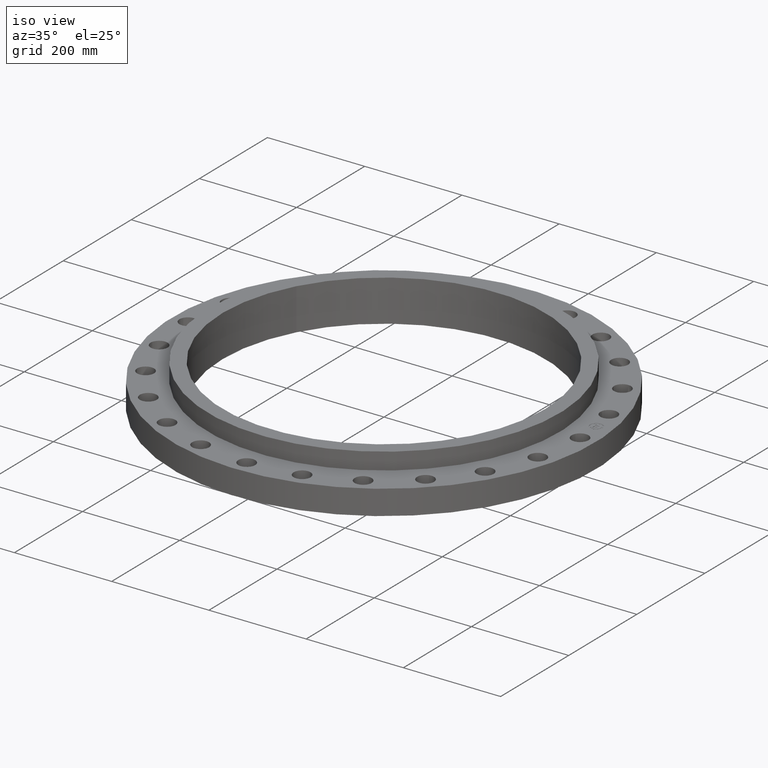
[diagram: clean part render]
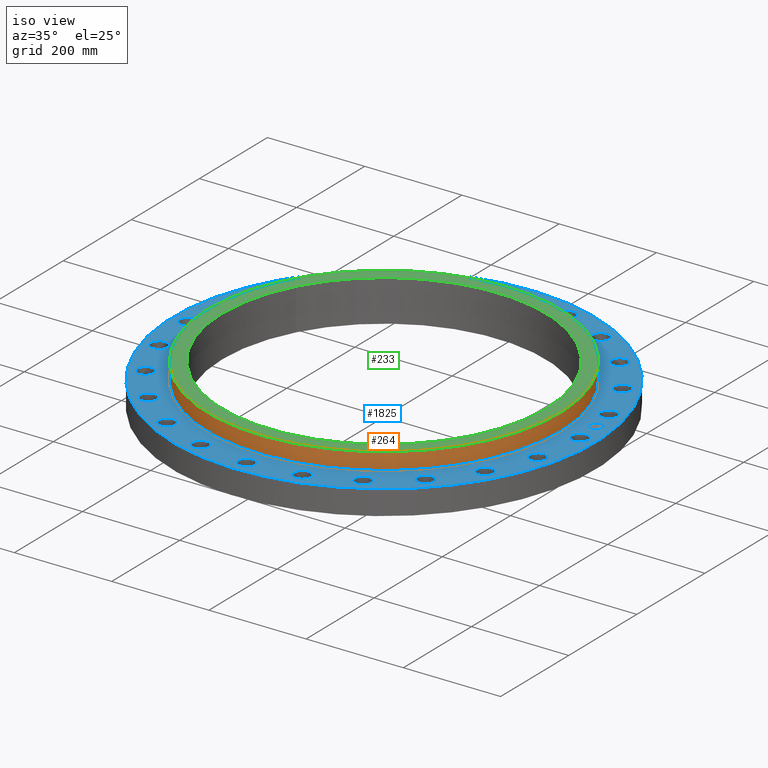
[diagram: same view with three faces highlighted in distinct colors, each labeled with its STEP entity id]
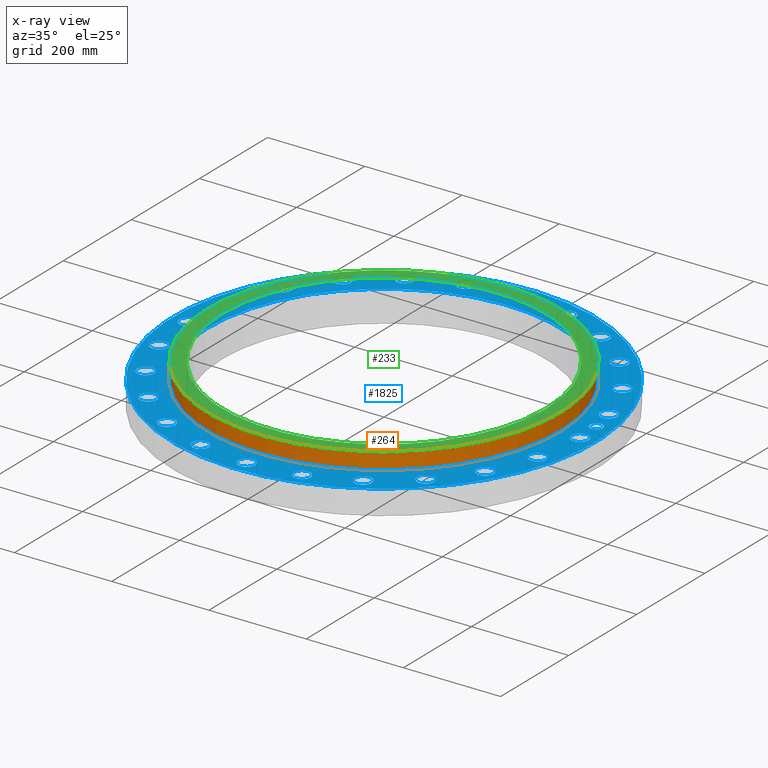
[diagram: x-ray of the same camera — body ghosted, the three highlighted faces saturated]
A machine part, iso view with three faces highlighted in distinct colors.
The next image is the same camera in x-ray (body ghosted, the three faces saturated) — at least one of them is partly hidden behind the body in this view.
Their STEP definitions:

[orange] entity #264 — the highlighted cylindrical surface (partial cylindrical patch) has radius 361.95 mm, axis along (0, 0, 1).
#213=AXIS2_PLACEMENT_3D('Circle Axis2P3D',#211,#212,$) ;
#237=AXIS2_PLACEMENT_3D('Cylinder Axis2P3D',#234,#235,#236) ;
#255=AXIS2_PLACEMENT_3D('Circle Axis2P3D',#253,#254,$) ;
#211=CARTESIAN_POINT('Axis2P3D Location',(0.,0.,3.37500000001)) ;
#215=CARTESIAN_POINT('Vertex',(-12.505551507,-6.83181392514,3.37500000001)) ;
#217=CARTESIAN_POINT('Vertex',(12.505551507,6.83181392514,3.37500000001)) ;
#234=CARTESIAN_POINT('Axis2P3D Location',(0.,0.,1.68750000001)) ;
#239=CARTESIAN_POINT('Line Origine',(12.505551507,6.83181392514,2.68750000001)) ;
#243=CARTESIAN_POINT('Vertex',(12.505551507,6.83181392514,2.00000000001)) ;
#246=CARTESIAN_POINT('Line Origine',(-12.505551507,-6.83181392514,2.68750000001)) ;
#250=CARTESIAN_POINT('Vertex',(-12.505551507,-6.83181392514,2.00000000001)) ;
#253=CARTESIAN_POINT('Axis2P3D Location',(0.,0.,2.00000000001)) ;
#212=DIRECTION('Axis2P3D Direction',(0.,0.,0.0393700787402)) ;
#235=DIRECTION('Axis2P3D Direction',(0.,0.,0.0393700787402)) ;
#236=DIRECTION('Axis2P3D XDirection',(0.0345504945626,0.0188750212049,0.)) ;
#240=DIRECTION('Vector Direction',(0.,0.,0.0393700787402)) ;
#247=DIRECTION('Vector Direction',(0.,0.,0.0393700787402)) ;
#254=DIRECTION('Axis2P3D Direction',(0.,0.,0.0393700787402)) ;
#241=VECTOR('Line Direction',#240,0.0393700787402) ;
#248=VECTOR('Line Direction',#247,0.0393700787402) ;
#259=ORIENTED_EDGE('',*,*,#245,.T.) ;
#260=ORIENTED_EDGE('',*,*,#219,.F.) ;
#261=ORIENTED_EDGE('',*,*,#252,.F.) ;
#262=ORIENTED_EDGE('',*,*,#257,.T.) ;
#264=ADVANCED_FACE('PartBody',(#263),#238,.T.) ;
#214=CIRCLE('generated circle',#213,14.2500000001) ;
#256=CIRCLE('generated circle',#255,14.2500000001) ;
#238=CYLINDRICAL_SURFACE('generated cylinder',#237,14.2500000001) ;
#219=EDGE_CURVE('',#216,#218,#214,.T.) ;
#245=EDGE_CURVE('',#244,#218,#242,.T.) ;
#252=EDGE_CURVE('',#251,#216,#249,.T.) ;
#257=EDGE_CURVE('',#251,#244,#256,.T.) ;
#258=EDGE_LOOP('',(#259,#260,#261,#262)) ;
#263=FACE_OUTER_BOUND('',#258,.T.) ;
#242=LINE('Line',#239,#241) ;
#249=LINE('Line',#246,#248) ;
#216=VERTEX_POINT('',#215) ;
#218=VERTEX_POINT('',#217) ;
#244=VERTEX_POINT('',#243) ;
#251=VERTEX_POINT('',#250) ;

[blue] entity #1825 — the highlighted planar face has unit normal (0, 0, 1).
#65=AXIS2_PLACEMENT_3D('Circle Axis2P3D',#63,#64,$) ;
#82=AXIS2_PLACEMENT_3D('Circle Axis2P3D',#80,#81,$) ;
#108=AXIS2_PLACEMENT_3D('Circle Axis2P3D',#106,#107,$) ;
#134=AXIS2_PLACEMENT_3D('Circle Axis2P3D',#132,#133,$) ;
#255=AXIS2_PLACEMENT_3D('Circle Axis2P3D',#253,#254,$) ;
#267=AXIS2_PLACEMENT_3D('Circle Axis2P3D',#265,#266,$) ;
#730=AXIS2_PLACEMENT_3D('Circle Axis2P3D',#728,#729,$) ;
#742=AXIS2_PLACEMENT_3D('Circle Axis2P3D',#740,#741,$) ;
#773=AXIS2_PLACEMENT_3D('Circle Axis2P3D',#771,#772,$) ;
#785=AXIS2_PLACEMENT_3D('Circle Axis2P3D',#783,#784,$) ;
#816=AXIS2_PLACEMENT_3D('Circle Axis2P3D',#814,#815,$) ;
#828=AXIS2_PLACEMENT_3D('Circle Axis2P3D',#826,#827,$) ;
#859=AXIS2_PLACEMENT_3D('Circle Axis2P3D',#857,#858,$) ;
#871=AXIS2_PLACEMENT_3D('Circle Axis2P3D',#869,#870,$) ;
#902=AXIS2_PLACEMENT_3D('Circle Axis2P3D',#900,#901,$) ;
#914=AXIS2_PLACEMENT_3D('Circle Axis2P3D',#912,#913,$) ;
#945=AXIS2_PLACEMENT_3D('Circle Axis2P3D',#943,#944,$) ;
#957=AXIS2_PLACEMENT_3D('Circle Axis2P3D',#955,#956,$) ;
#988=AXIS2_PLACEMENT_3D('Circle Axis2P3D',#986,#987,$) ;
#1000=AXIS2_PLACEMENT_3D('Circle Axis2P3D',#998,#999,$) ;
#1031=AXIS2_PLACEMENT_3D('Circle Axis2P3D',#1029,#1030,$) ;
#1043=AXIS2_PLACEMENT_3D('Circle Axis2P3D',#1041,#1042,$) ;
#1074=AXIS2_PLACEMENT_3D('Circle Axis2P3D',#1072,#1073,$) ;
#1086=AXIS2_PLACEMENT_3D('Circle Axis2P3D',#1084,#1085,$) ;
#1117=AXIS2_PLACEMENT_3D('Circle Axis2P3D',#1115,#1116,$) ;
#1129=AXIS2_PLACEMENT_3D('Circle Axis2P3D',#1127,#1128,$) ;
#1160=AXIS2_PLACEMENT_3D('Circle Axis2P3D',#1158,#1159,$) ;
#1172=AXIS2_PLACEMENT_3D('Circle Axis2P3D',#1170,#1171,$) ;
#1203=AXIS2_PLACEMENT_3D('Circle Axis2P3D',#1201,#1202,$) ;
#1215=AXIS2_PLACEMENT_3D('Circle Axis2P3D',#1213,#1214,$) ;
#1246=AXIS2_PLACEMENT_3D('Circle Axis2P3D',#1244,#1245,$) ;
#1258=AXIS2_PLACEMENT_3D('Circle Axis2P3D',#1256,#1257,$) ;
#1289=AXIS2_PLACEMENT_3D('Circle Axis2P3D',#1287,#1288,$) ;
#1301=AXIS2_PLACEMENT_3D('Circle Axis2P3D',#1299,#1300,$) ;
#1332=AXIS2_PLACEMENT_3D('Circle Axis2P3D',#1330,#1331,$) ;
#1344=AXIS2_PLACEMENT_3D('Circle Axis2P3D',#1342,#1343,$) ;
#1375=AXIS2_PLACEMENT_3D('Circle Axis2P3D',#1373,#1374,$) ;
#1387=AXIS2_PLACEMENT_3D('Circle Axis2P3D',#1385,#1386,$) ;
#1418=AXIS2_PLACEMENT_3D('Circle Axis2P3D',#1416,#1417,$) ;
#1430=AXIS2_PLACEMENT_3D('Circle Axis2P3D',#1428,#1429,$) ;
#1461=AXIS2_PLACEMENT_3D('Circle Axis2P3D',#1459,#1460,$) ;
#1473=AXIS2_PLACEMENT_3D('Circle Axis2P3D',#1471,#1472,$) ;
#1504=AXIS2_PLACEMENT_3D('Circle Axis2P3D',#1502,#1503,$) ;
#1516=AXIS2_PLACEMENT_3D('Circle Axis2P3D',#1514,#1515,$) ;
#1547=AXIS2_PLACEMENT_3D('Circle Axis2P3D',#1545,#1546,$) ;
#1559=AXIS2_PLACEMENT_3D('Circle Axis2P3D',#1557,#1558,$) ;
#1590=AXIS2_PLACEMENT_3D('Circle Axis2P3D',#1588,#1589,$) ;
#1602=AXIS2_PLACEMENT_3D('Circle Axis2P3D',#1600,#1601,$) ;
#1633=AXIS2_PLACEMENT_3D('Circle Axis2P3D',#1631,#1632,$) ;
#1645=AXIS2_PLACEMENT_3D('Circle Axis2P3D',#1643,#1644,$) ;
#1676=AXIS2_PLACEMENT_3D('Circle Axis2P3D',#1674,#1675,$) ;
#1688=AXIS2_PLACEMENT_3D('Circle Axis2P3D',#1686,#1687,$) ;
#1701=AXIS2_PLACEMENT_3D('Plane Axis2P3D',#1698,#1699,#1700) ;
#1809=AXIS2_PLACEMENT_3D('Circle Axis2P3D',#1807,#1808,$) ;
#1818=AXIS2_PLACEMENT_3D('Circle Axis2P3D',#1816,#1817,$) ;
#46=CARTESIAN_POINT('Vertex',(15.2716619888,0.329605057792,2.00000000001)) ;
#60=CARTESIAN_POINT('Vertex',(16.4783380114,-0.329605057792,2.00000000001)) ;
#63=CARTESIAN_POINT('Axis2P3D Location',(15.8750000001,0.,2.00000000001)) ;
#80=CARTESIAN_POINT('Axis2P3D Location',(15.8750000001,0.,2.00000000001)) ;
#103=CARTESIAN_POINT('Vertex',(15.0286013724,8.21016234863,2.00000000001)) ;
#106=CARTESIAN_POINT('Axis2P3D Location',(0.,0.,2.00000000001)) ;
#110=CARTESIAN_POINT('Vertex',(-15.0286013724,-8.21016234863,2.00000000001)) ;
#132=CARTESIAN_POINT('Axis2P3D Location',(0.,0.,2.00000000001)) ;
#243=CARTESIAN_POINT('Vertex',(12.505551507,6.83181392514,2.00000000001)) ;
#250=CARTESIAN_POINT('Vertex',(-12.505551507,-6.83181392514,2.00000000001)) ;
#253=CARTESIAN_POINT('Axis2P3D Location',(0.,0.,2.00000000001)) ;
#265=CARTESIAN_POINT('Axis2P3D Location',(0.,0.,2.00000000001)) ;
#718=CARTESIAN_POINT('Vertex',(14.665984659,4.27097101086,2.00000000001)) ;
#725=CARTESIAN_POINT('Vertex',(16.0021603258,3.94653367118,2.00000000001)) ;
#728=CARTESIAN_POINT('Axis2P3D Location',(15.3340724924,4.10875234102,2.00000000001)) ;
#740=CARTESIAN_POINT('Axis2P3D Location',(15.3340724924,4.10875234102,2.00000000001)) ;
#761=CARTESIAN_POINT('Vertex',(13.0608447114,7.92127734764,2.00000000001)) ;
#768=CARTESIAN_POINT('Vertex',(14.4354618589,7.95372265242,2.00000000001)) ;
#771=CARTESIAN_POINT('Axis2P3D Location',(13.7481532851,7.93750000003,2.00000000001)) ;
#783=CARTESIAN_POINT('Axis2P3D Location',(13.7481532851,7.93750000003,2.00000000001)) ;
#804=CARTESIAN_POINT('Vertex',(10.5656297808,11.0317617237,2.00000000001)) ;
#811=CARTESIAN_POINT('Vertex',(11.885010522,11.418878579,2.00000000001)) ;
#814=CARTESIAN_POINT('Axis2P3D Location',(11.2253201514,11.2253201514,2.00000000001)) ;
#826=CARTESIAN_POINT('Axis2P3D Location',(11.2253201514,11.2253201514,2.00000000001)) ;
#847=CARTESIAN_POINT('Vertex',(7.35038464112,13.3904497692,2.00000000001)) ;
#854=CARTESIAN_POINT('Vertex',(8.52461535895,14.1058568011,2.00000000001)) ;
#857=CARTESIAN_POINT('Axis2P3D Location',(7.93750000003,13.7481532851,2.00000000001)) ;
#869=CARTESIAN_POINT('Axis2P3D Location',(7.93750000003,13.7481532851,2.00000000001)) ;
#890=CARTESIAN_POINT('Vertex',(3.63422293526,14.8366007916,2.00000000001)) ;
#897=CARTESIAN_POINT('Vertex',(4.58328174677,15.8315441932,2.00000000001)) ;
#900=CARTESIAN_POINT('Axis2P3D Location',(4.10875234102,15.3340724924,2.00000000001)) ;
#912=CARTESIAN_POINT('Axis2P3D Location',(4.10875234102,15.3340724924,2.00000000001)) ;
#933=CARTESIAN_POINT('Vertex',(-0.329605057792,15.2716619888,2.00000000001)) ;
#940=CARTESIAN_POINT('Vertex',(0.329605057792,16.4783380114,2.00000000001)) ;
#943=CARTESIAN_POINT('Axis2P3D Location',(9.72063396827E-016,15.8750000001,2.00000000001)) ;
#955=CARTESIAN_POINT('Axis2P3D Location',(9.72063396827E-016,15.8750000001,2.00000000001)) ;
#976=CARTESIAN_POINT('Vertex',(-4.27097101086,14.665984659,2.00000000001)) ;
#983=CARTESIAN_POINT('Vertex',(-3.94653367118,16.0021603258,2.00000000001)) ;
#986=CARTESIAN_POINT('Axis2P3D Location',(-4.10875234102,15.3340724924,2.00000000001)) ;
#998=CARTESIAN_POINT('Axis2P3D Location',(-4.10875234102,15.3340724924,2.00000000001)) ;
#1019=CARTESIAN_POINT('Vertex',(-7.92127734764,13.0608447114,2.00000000001)) ;
#1026=CARTESIAN_POINT('Vertex',(-7.95372265242,14.4354618589,2.00000000001)) ;
#1029=CARTESIAN_POINT('Axis2P3D Location',(-7.93750000003,13.7481532851,2.00000000001)) ;
#1041=CARTESIAN_POINT('Axis2P3D Location',(-7.93750000003,13.7481532851,2.00000000001)) ;
#1062=CARTESIAN_POINT('Vertex',(-11.0317617237,10.5656297808,2.00000000001)) ;
#1069=CARTESIAN_POINT('Vertex',(-11.418878579,11.885010522,2.00000000001)) ;
#1072=CARTESIAN_POINT('Axis2P3D Location',(-11.2253201514,11.2253201514,2.00000000001)) ;
#1084=CARTESIAN_POINT('Axis2P3D Location',(-11.2253201514,11.2253201514,2.00000000001)) ;
#1105=CARTESIAN_POINT('Vertex',(-13.3904497692,7.35038464112,2.00000000001)) ;
#1112=CARTESIAN_POINT('Vertex',(-14.1058568011,8.52461535895,2.00000000001)) ;
#1115=CARTESIAN_POINT('Axis2P3D Location',(-13.7481532851,7.93750000003,2.00000000001)) ;
#1127=CARTESIAN_POINT('Axis2P3D Location',(-13.7481532851,7.93750000003,2.00000000001)) ;
#1148=CARTESIAN_POINT('Vertex',(-14.8366007916,3.63422293526,2.00000000001)) ;
#1155=CARTESIAN_POINT('Vertex',(-15.8315441932,4.58328174677,2.00000000001)) ;
#1158=CARTESIAN_POINT('Axis2P3D Location',(-15.3340724924,4.10875234102,2.00000000001)) ;
#1170=CARTESIAN_POINT('Axis2P3D Location',(-15.3340724924,4.10875234102,2.00000000001)) ;
#1191=CARTESIAN_POINT('Vertex',(-15.2716619888,-0.329605057792,2.00000000001)) ;
#1198=CARTESIAN_POINT('Vertex',(-16.4783380114,0.329605057792,2.00000000001)) ;
#1201=CARTESIAN_POINT('Axis2P3D Location',(-15.8750000001,1.94412679365E-015,2.00000000001)) ;
#1213=CARTESIAN_POINT('Axis2P3D Location',(-15.8750000001,1.94412679365E-015,2.00000000001)) ;
#1234=CARTESIAN_POINT('Vertex',(-14.665984659,-4.27097101086,2.00000000001)) ;
#1241=CARTESIAN_POINT('Vertex',(-16.0021603258,-3.94653367118,2.00000000001)) ;
#1244=CARTESIAN_POINT('Axis2P3D Location',(-15.3340724924,-4.10875234102,2.00000000001)) ;
#1256=CARTESIAN_POINT('Axis2P3D Location',(-15.3340724924,-4.10875234102,2.00000000001)) ;
#1277=CARTESIAN_POINT('Vertex',(-13.0608447114,-7.92127734764,2.00000000001)) ;
#1284=CARTESIAN_POINT('Vertex',(-14.4354618589,-7.95372265242,2.00000000001)) ;
#1287=CARTESIAN_POINT('Axis2P3D Location',(-13.7481532851,-7.93750000003,2.00000000001)) ;
#1299=CARTESIAN_POINT('Axis2P3D Location',(-13.7481532851,-7.93750000003,2.00000000001)) ;
#1320=CARTESIAN_POINT('Vertex',(-10.5656297808,-11.0317617237,2.00000000001)) ;
#1327=CARTESIAN_POINT('Vertex',(-11.885010522,-11.418878579,2.00000000001)) ;
#1330=CARTESIAN_POINT('Axis2P3D Location',(-11.2253201514,-11.2253201514,2.00000000001)) ;
#1342=CARTESIAN_POINT('Axis2P3D Location',(-11.2253201514,-11.2253201514,2.00000000001)) ;
#1363=CARTESIAN_POINT('Vertex',(-7.35038464112,-13.3904497692,2.00000000001)) ;
#1370=CARTESIAN_POINT('Vertex',(-8.52461535895,-14.1058568011,2.00000000001)) ;
#1373=CARTESIAN_POINT('Axis2P3D Location',(-7.93750000003,-13.7481532851,2.00000000001)) ;
#1385=CARTESIAN_POINT('Axis2P3D Location',(-7.93750000003,-13.7481532851,2.00000000001)) ;
#1406=CARTESIAN_POINT('Vertex',(-3.63422293526,-14.8366007916,2.00000000001)) ;
#1413=CARTESIAN_POINT('Vertex',(-4.58328174677,-15.8315441932,2.00000000001)) ;
#1416=CARTESIAN_POINT('Axis2P3D Location',(-4.10875234102,-15.3340724924,2.00000000001)) ;
#1428=CARTESIAN_POINT('Axis2P3D Location',(-4.10875234102,-15.3340724924,2.00000000001)) ;
#1449=CARTESIAN_POINT('Vertex',(0.329605057792,-15.2716619888,2.00000000001)) ;
#1456=CARTESIAN_POINT('Vertex',(-0.329605057792,-16.4783380114,2.00000000001)) ;
#1459=CARTESIAN_POINT('Axis2P3D Location',(-6.78260314072E-016,-15.8750000001,2.00000000001)) ;
#1471=CARTESIAN_POINT('Axis2P3D Location',(-6.78260314072E-016,-15.8750000001,2.00000000001)) ;
#1492=CARTESIAN_POINT('Vertex',(4.27097101086,-14.665984659,2.00000000001)) ;
#1499=CARTESIAN_POINT('Vertex',(3.94653367118,-16.0021603258,2.00000000001)) ;
#1502=CARTESIAN_POINT('Axis2P3D Location',(4.10875234102,-15.3340724924,2.00000000001)) ;
#1514=CARTESIAN_POINT('Axis2P3D Location',(4.10875234102,-15.3340724924,2.00000000001)) ;
#1535=CARTESIAN_POINT('Vertex',(7.92127734764,-13.0608447114,2.00000000001)) ;
#1542=CARTESIAN_POINT('Vertex',(7.95372265242,-14.4354618589,2.00000000001)) ;
#1545=CARTESIAN_POINT('Axis2P3D Location',(7.93750000003,-13.7481532851,2.00000000001)) ;
#1557=CARTESIAN_POINT('Axis2P3D Location',(7.93750000003,-13.7481532851,2.00000000001)) ;
#1578=CARTESIAN_POINT('Vertex',(11.0317617237,-10.5656297808,2.00000000001)) ;
#1585=CARTESIAN_POINT('Vertex',(11.418878579,-11.885010522,2.00000000001)) ;
#1588=CARTESIAN_POINT('Axis2P3D Location',(11.2253201514,-11.2253201514,2.00000000001)) ;
#1600=CARTESIAN_POINT('Axis2P3D Location',(11.2253201514,-11.2253201514,2.00000000001)) ;
#1621=CARTESIAN_POINT('Vertex',(13.3904497692,-7.35038464112,2.00000000001)) ;
#1628=CARTESIAN_POINT('Vertex',(14.1058568011,-8.52461535895,2.00000000001)) ;
#1631=CARTESIAN_POINT('Axis2P3D Location',(13.7481532851,-7.93750000003,2.00000000001)) ;
#1643=CARTESIAN_POINT('Axis2P3D Location',(13.7481532851,-7.93750000003,2.00000000001)) ;
#1664=CARTESIAN_POINT('Vertex',(14.8366007916,-3.63422293526,2.00000000001)) ;
#1671=CARTESIAN_POINT('Vertex',(15.8315441932,-4.58328174677,2.00000000001)) ;
#1674=CARTESIAN_POINT('Axis2P3D Location',(15.3340724924,-4.10875234102,2.00000000001)) ;
#1686=CARTESIAN_POINT('Axis2P3D Location',(15.3340724924,-4.10875234102,2.00000000001)) ;
#1698=CARTESIAN_POINT('Axis2P3D Location',(17.1250000001,0.,2.00000000001)) ;
#1807=CARTESIAN_POINT('Axis2P3D Location',(15.7391871744,2.0721033015,2.00000000001)) ;
#1811=CARTESIAN_POINT('Vertex',(15.6739240789,2.56782572723,2.00000000001)) ;
#1813=CARTESIAN_POINT('Vertex',(15.8044502698,1.57638087577,2.00000000001)) ;
#1816=CARTESIAN_POINT('Axis2P3D Location',(15.7391871744,2.0721033015,2.00000000001)) ;
#64=DIRECTION('Axis2P3D Direction',(0.,-0.,-0.0393700787402)) ;
#81=DIRECTION('Axis2P3D Direction',(0.,-0.,-0.0393700787402)) ;
#107=DIRECTION('Axis2P3D Direction',(0.,0.,0.0393700787402)) ;
#133=DIRECTION('Axis2P3D Direction',(0.,0.,0.0393700787402)) ;
#254=DIRECTION('Axis2P3D Direction',(0.,0.,0.0393700787402)) ;
#266=DIRECTION('Axis2P3D Direction',(0.,0.,0.0393700787402)) ;
#729=DIRECTION('Axis2P3D Direction',(0.,0.,-0.0393700787402)) ;
#741=DIRECTION('Axis2P3D Direction',(0.,0.,-0.0393700787402)) ;
#772=DIRECTION('Axis2P3D Direction',(0.,0.,-0.0393700787402)) ;
#784=DIRECTION('Axis2P3D Direction',(0.,0.,-0.0393700787402)) ;
#815=DIRECTION('Axis2P3D Direction',(0.,0.,-0.0393700787402)) ;
#827=DIRECTION('Axis2P3D Direction',(0.,0.,-0.0393700787402)) ;
#858=DIRECTION('Axis2P3D Direction',(0.,0.,-0.0393700787402)) ;
#870=DIRECTION('Axis2P3D Direction',(0.,0.,-0.0393700787402)) ;
#901=DIRECTION('Axis2P3D Direction',(0.,0.,-0.0393700787402)) ;
#913=DIRECTION('Axis2P3D Direction',(0.,0.,-0.0393700787402)) ;
#944=DIRECTION('Axis2P3D Direction',(0.,0.,-0.0393700787402)) ;
#956=DIRECTION('Axis2P3D Direction',(0.,0.,-0.0393700787402)) ;
#987=DIRECTION('Axis2P3D Direction',(0.,0.,-0.0393700787402)) ;
#999=DIRECTION('Axis2P3D Direction',(0.,0.,-0.0393700787402)) ;
#1030=DIRECTION('Axis2P3D Direction',(0.,0.,-0.0393700787402)) ;
#1042=DIRECTION('Axis2P3D Direction',(0.,0.,-0.0393700787402)) ;
#1073=DIRECTION('Axis2P3D Direction',(0.,0.,-0.0393700787402)) ;
#1085=DIRECTION('Axis2P3D Direction',(0.,0.,-0.0393700787402)) ;
#1116=DIRECTION('Axis2P3D Direction',(0.,0.,-0.0393700787402)) ;
#1128=DIRECTION('Axis2P3D Direction',(0.,0.,-0.0393700787402)) ;
#1159=DIRECTION('Axis2P3D Direction',(0.,0.,-0.0393700787402)) ;
#1171=DIRECTION('Axis2P3D Direction',(0.,0.,-0.0393700787402)) ;
#1202=DIRECTION('Axis2P3D Direction',(0.,0.,-0.0393700787402)) ;
#1214=DIRECTION('Axis2P3D Direction',(0.,0.,-0.0393700787402)) ;
#1245=DIRECTION('Axis2P3D Direction',(-0.,0.,-0.0393700787402)) ;
#1257=DIRECTION('Axis2P3D Direction',(-0.,0.,-0.0393700787402)) ;
#1288=DIRECTION('Axis2P3D Direction',(-0.,0.,-0.0393700787402)) ;
#1300=DIRECTION('Axis2P3D Direction',(-0.,0.,-0.0393700787402)) ;
#1331=DIRECTION('Axis2P3D Direction',(-0.,0.,-0.0393700787402)) ;
#1343=DIRECTION('Axis2P3D Direction',(-0.,0.,-0.0393700787402)) ;
#1374=DIRECTION('Axis2P3D Direction',(-0.,0.,-0.0393700787402)) ;
#1386=DIRECTION('Axis2P3D Direction',(-0.,0.,-0.0393700787402)) ;
#1417=DIRECTION('Axis2P3D Direction',(-0.,0.,-0.0393700787402)) ;
#1429=DIRECTION('Axis2P3D Direction',(-0.,0.,-0.0393700787402)) ;
#1460=DIRECTION('Axis2P3D Direction',(-0.,0.,-0.0393700787402)) ;
#1472=DIRECTION('Axis2P3D Direction',(-0.,0.,-0.0393700787402)) ;
#1503=DIRECTION('Axis2P3D Direction',(0.,-0.,-0.0393700787402)) ;
#1515=DIRECTION('Axis2P3D Direction',(0.,-0.,-0.0393700787402)) ;
#1546=DIRECTION('Axis2P3D Direction',(0.,-0.,-0.0393700787402)) ;
#1558=DIRECTION('Axis2P3D Direction',(0.,-0.,-0.0393700787402)) ;
#1589=DIRECTION('Axis2P3D Direction',(0.,-0.,-0.0393700787402)) ;
#1601=DIRECTION('Axis2P3D Direction',(0.,-0.,-0.0393700787402)) ;
#1632=DIRECTION('Axis2P3D Direction',(0.,-0.,-0.0393700787402)) ;
#1644=DIRECTION('Axis2P3D Direction',(0.,-0.,-0.0393700787402)) ;
#1675=DIRECTION('Axis2P3D Direction',(0.,-0.,-0.0393700787402)) ;
#1687=DIRECTION('Axis2P3D Direction',(0.,-0.,-0.0393700787402)) ;
#1699=DIRECTION('Axis2P3D Direction',(0.,0.,0.0393700787402)) ;
#1700=DIRECTION('Axis2P3D XDirection',(0.0393700787402,0.,0.)) ;
#1808=DIRECTION('Axis2P3D Direction',(0.,0.,0.0393700787402)) ;
#1817=DIRECTION('Axis2P3D Direction',(0.,0.,0.0393700787402)) ;
#1704=ORIENTED_EDGE('',*,*,#112,.T.) ;
#1705=ORIENTED_EDGE('',*,*,#136,.T.) ;
#1708=ORIENTED_EDGE('',*,*,#84,.F.) ;
#1709=ORIENTED_EDGE('',*,*,#67,.F.) ;
#1712=ORIENTED_EDGE('',*,*,#269,.F.) ;
#1713=ORIENTED_EDGE('',*,*,#257,.F.) ;
#1716=ORIENTED_EDGE('',*,*,#732,.F.) ;
#1717=ORIENTED_EDGE('',*,*,#744,.F.) ;
#1720=ORIENTED_EDGE('',*,*,#775,.F.) ;
#1721=ORIENTED_EDGE('',*,*,#787,.F.) ;
#1724=ORIENTED_EDGE('',*,*,#818,.F.) ;
#1725=ORIENTED_EDGE('',*,*,#830,.F.) ;
#1728=ORIENTED_EDGE('',*,*,#861,.F.) ;
#1729=ORIENTED_EDGE('',*,*,#873,.F.) ;
#1732=ORIENTED_EDGE('',*,*,#904,.F.) ;
#1733=ORIENTED_EDGE('',*,*,#916,.F.) ;
#1736=ORIENTED_EDGE('',*,*,#947,.F.) ;
#1737=ORIENTED_EDGE('',*,*,#959,.F.) ;
#1740=ORIENTED_EDGE('',*,*,#990,.F.) ;
#1741=ORIENTED_EDGE('',*,*,#1002,.F.) ;
#1744=ORIENTED_EDGE('',*,*,#1033,.F.) ;
#1745=ORIENTED_EDGE('',*,*,#1045,.F.) ;
#1748=ORIENTED_EDGE('',*,*,#1076,.F.) ;
#1749=ORIENTED_EDGE('',*,*,#1088,.F.) ;
#1752=ORIENTED_EDGE('',*,*,#1119,.F.) ;
#1753=ORIENTED_EDGE('',*,*,#1131,.F.) ;
#1756=ORIENTED_EDGE('',*,*,#1162,.F.) ;
#1757=ORIENTED_EDGE('',*,*,#1174,.F.) ;
#1760=ORIENTED_EDGE('',*,*,#1205,.F.) ;
#1761=ORIENTED_EDGE('',*,*,#1217,.F.) ;
#1764=ORIENTED_EDGE('',*,*,#1248,.F.) ;
#1765=ORIENTED_EDGE('',*,*,#1260,.F.) ;
#1768=ORIENTED_EDGE('',*,*,#1291,.F.) ;
#1769=ORIENTED_EDGE('',*,*,#1303,.F.) ;
#1772=ORIENTED_EDGE('',*,*,#1334,.F.) ;
#1773=ORIENTED_EDGE('',*,*,#1346,.F.) ;
#1776=ORIENTED_EDGE('',*,*,#1377,.F.) ;
#1777=ORIENTED_EDGE('',*,*,#1389,.F.) ;
#1780=ORIENTED_EDGE('',*,*,#1420,.F.) ;
#1781=ORIENTED_EDGE('',*,*,#1432,.F.) ;
#1784=ORIENTED_EDGE('',*,*,#1463,.F.) ;
#1785=ORIENTED_EDGE('',*,*,#1475,.F.) ;
#1788=ORIENTED_EDGE('',*,*,#1506,.F.) ;
#1789=ORIENTED_EDGE('',*,*,#1518,.F.) ;
#1792=ORIENTED_EDGE('',*,*,#1549,.F.) ;
#1793=ORIENTED_EDGE('',*,*,#1561,.F.) ;
#1796=ORIENTED_EDGE('',*,*,#1592,.F.) ;
#1797=ORIENTED_EDGE('',*,*,#1604,.F.) ;
#1800=ORIENTED_EDGE('',*,*,#1635,.F.) ;
#1801=ORIENTED_EDGE('',*,*,#1647,.F.) ;
#1804=ORIENTED_EDGE('',*,*,#1678,.F.) ;
#1805=ORIENTED_EDGE('',*,*,#1690,.F.) ;
#1822=ORIENTED_EDGE('',*,*,#1815,.F.) ;
#1823=ORIENTED_EDGE('',*,*,#1820,.F.) ;
#1710=FACE_BOUND('',#1707,.T.) ;
#1714=FACE_BOUND('',#1711,.T.) ;
#1718=FACE_BOUND('',#1715,.T.) ;
#1722=FACE_BOUND('',#1719,.T.) ;
#1726=FACE_BOUND('',#1723,.T.) ;
#1730=FACE_BOUND('',#1727,.T.) ;
#1734=FACE_BOUND('',#1731,.T.) ;
#1738=FACE_BOUND('',#1735,.T.) ;
#1742=FACE_BOUND('',#1739,.T.) ;
#1746=FACE_BOUND('',#1743,.T.) ;
#1750=FACE_BOUND('',#1747,.T.) ;
#1754=FACE_BOUND('',#1751,.T.) ;
#1758=FACE_BOUND('',#1755,.T.) ;
#1762=FACE_BOUND('',#1759,.T.) ;
#1766=FACE_BOUND('',#1763,.T.) ;
#1770=FACE_BOUND('',#1767,.T.) ;
#1774=FACE_BOUND('',#1771,.T.) ;
#1778=FACE_BOUND('',#1775,.T.) ;
#1782=FACE_BOUND('',#1779,.T.) ;
#1786=FACE_BOUND('',#1783,.T.) ;
#1790=FACE_BOUND('',#1787,.T.) ;
#1794=FACE_BOUND('',#1791,.T.) ;
#1798=FACE_BOUND('',#1795,.T.) ;
#1802=FACE_BOUND('',#1799,.T.) ;
#1806=FACE_BOUND('',#1803,.T.) ;
#1824=FACE_BOUND('',#1821,.T.) ;
#1825=ADVANCED_FACE('PartBody',(#1706,#1710,#1714,#1718,#1722,#1726,#1730,#1734,#1738,#1742,#1746,#1750,#1754,#1758,#1762,#1766,#1770,#1774,#1778,#1782,#1786,#1790,#1794,#1798,#1802,#1806,#1824),#1702,.T.) ;
#66=CIRCLE('generated circle',#65,0.687500000003) ;
#83=CIRCLE('generated circle',#82,0.687500000003) ;
#109=CIRCLE('generated circle',#108,17.1250000001) ;
#135=CIRCLE('generated circle',#134,17.1250000001) ;
#256=CIRCLE('generated circle',#255,14.2500000001) ;
#268=CIRCLE('generated circle',#267,14.2500000001) ;
#731=CIRCLE('generated circle',#730,0.687500000003) ;
#743=CIRCLE('generated circle',#742,0.687500000003) ;
#774=CIRCLE('generated circle',#773,0.687500000003) ;
#786=CIRCLE('generated circle',#785,0.687500000003) ;
#817=CIRCLE('generated circle',#816,0.687500000003) ;
#829=CIRCLE('generated circle',#828,0.687500000003) ;
#860=CIRCLE('generated circle',#859,0.687500000003) ;
#872=CIRCLE('generated circle',#871,0.687500000003) ;
#903=CIRCLE('generated circle',#902,0.687500000003) ;
#915=CIRCLE('generated circle',#914,0.687500000003) ;
#946=CIRCLE('generated circle',#945,0.687500000003) ;
#958=CIRCLE('generated circle',#957,0.687500000003) ;
#989=CIRCLE('generated circle',#988,0.687500000003) ;
#1001=CIRCLE('generated circle',#1000,0.687500000003) ;
#1032=CIRCLE('generated circle',#1031,0.687500000003) ;
#1044=CIRCLE('generated circle',#1043,0.687500000003) ;
#1075=CIRCLE('generated circle',#1074,0.687500000003) ;
#1087=CIRCLE('generated circle',#1086,0.687500000003) ;
#1118=CIRCLE('generated circle',#1117,0.687500000003) ;
#1130=CIRCLE('generated circle',#1129,0.687500000003) ;
#1161=CIRCLE('generated circle',#1160,0.687500000003) ;
#1173=CIRCLE('generated circle',#1172,0.687500000003) ;
#1204=CIRCLE('generated circle',#1203,0.687500000003) ;
#1216=CIRCLE('generated circle',#1215,0.687500000003) ;
#1247=CIRCLE('generated circle',#1246,0.687500000003) ;
#1259=CIRCLE('generated circle',#1258,0.687500000003) ;
#1290=CIRCLE('generated circle',#1289,0.687500000003) ;
#1302=CIRCLE('generated circle',#1301,0.687500000003) ;
#1333=CIRCLE('generated circle',#1332,0.687500000003) ;
#1345=CIRCLE('generated circle',#1344,0.687500000003) ;
#1376=CIRCLE('generated circle',#1375,0.687500000003) ;
#1388=CIRCLE('generated circle',#1387,0.687500000003) ;
#1419=CIRCLE('generated circle',#1418,0.687500000003) ;
#1431=CIRCLE('generated circle',#1430,0.687500000003) ;
#1462=CIRCLE('generated circle',#1461,0.687500000003) ;
#1474=CIRCLE('generated circle',#1473,0.687500000003) ;
#1505=CIRCLE('generated circle',#1504,0.687500000003) ;
#1517=CIRCLE('generated circle',#1516,0.687500000003) ;
#1548=CIRCLE('generated circle',#1547,0.687500000003) ;
#1560=CIRCLE('generated circle',#1559,0.687500000003) ;
#1591=CIRCLE('generated circle',#1590,0.687500000003) ;
#1603=CIRCLE('generated circle',#1602,0.687500000003) ;
#1634=CIRCLE('generated circle',#1633,0.687500000003) ;
#1646=CIRCLE('generated circle',#1645,0.687500000003) ;
#1677=CIRCLE('generated circle',#1676,0.687500000003) ;
#1689=CIRCLE('generated circle',#1688,0.687500000003) ;
#1810=CIRCLE('generated circle',#1809,0.499999995002) ;
#1819=CIRCLE('generated circle',#1818,0.499999995002) ;
#67=EDGE_CURVE('',#61,#47,#66,.F.) ;
#84=EDGE_CURVE('',#47,#61,#83,.F.) ;
#112=EDGE_CURVE('',#111,#104,#109,.T.) ;
#136=EDGE_CURVE('',#104,#111,#135,.T.) ;
#257=EDGE_CURVE('',#251,#244,#256,.T.) ;
#269=EDGE_CURVE('',#244,#251,#268,.T.) ;
#732=EDGE_CURVE('',#726,#719,#731,.F.) ;
#744=EDGE_CURVE('',#719,#726,#743,.F.) ;
#775=EDGE_CURVE('',#769,#762,#774,.F.) ;
#787=EDGE_CURVE('',#762,#769,#786,.F.) ;
#818=EDGE_CURVE('',#812,#805,#817,.F.) ;
#830=EDGE_CURVE('',#805,#812,#829,.F.) ;
#861=EDGE_CURVE('',#855,#848,#860,.F.) ;
#873=EDGE_CURVE('',#848,#855,#872,.F.) ;
#904=EDGE_CURVE('',#898,#891,#903,.F.) ;
#916=EDGE_CURVE('',#891,#898,#915,.F.) ;
#947=EDGE_CURVE('',#941,#934,#946,.F.) ;
#959=EDGE_CURVE('',#934,#941,#958,.F.) ;
#990=EDGE_CURVE('',#984,#977,#989,.F.) ;
#1002=EDGE_CURVE('',#977,#984,#1001,.F.) ;
#1033=EDGE_CURVE('',#1027,#1020,#1032,.F.) ;
#1045=EDGE_CURVE('',#1020,#1027,#1044,.F.) ;
#1076=EDGE_CURVE('',#1070,#1063,#1075,.F.) ;
#1088=EDGE_CURVE('',#1063,#1070,#1087,.F.) ;
#1119=EDGE_CURVE('',#1113,#1106,#1118,.F.) ;
#1131=EDGE_CURVE('',#1106,#1113,#1130,.F.) ;
#1162=EDGE_CURVE('',#1156,#1149,#1161,.F.) ;
#1174=EDGE_CURVE('',#1149,#1156,#1173,.F.) ;
#1205=EDGE_CURVE('',#1199,#1192,#1204,.F.) ;
#1217=EDGE_CURVE('',#1192,#1199,#1216,.F.) ;
#1248=EDGE_CURVE('',#1242,#1235,#1247,.F.) ;
#1260=EDGE_CURVE('',#1235,#1242,#1259,.F.) ;
#1291=EDGE_CURVE('',#1285,#1278,#1290,.F.) ;
#1303=EDGE_CURVE('',#1278,#1285,#1302,.F.) ;
#1334=EDGE_CURVE('',#1328,#1321,#1333,.F.) ;
#1346=EDGE_CURVE('',#1321,#1328,#1345,.F.) ;
#1377=EDGE_CURVE('',#1371,#1364,#1376,.F.) ;
#1389=EDGE_CURVE('',#1364,#1371,#1388,.F.) ;
#1420=EDGE_CURVE('',#1414,#1407,#1419,.F.) ;
#1432=EDGE_CURVE('',#1407,#1414,#1431,.F.) ;
#1463=EDGE_CURVE('',#1457,#1450,#1462,.F.) ;
#1475=EDGE_CURVE('',#1450,#1457,#1474,.F.) ;
#1506=EDGE_CURVE('',#1500,#1493,#1505,.F.) ;
#1518=EDGE_CURVE('',#1493,#1500,#1517,.F.) ;
#1549=EDGE_CURVE('',#1543,#1536,#1548,.F.) ;
#1561=EDGE_CURVE('',#1536,#1543,#1560,.F.) ;
#1592=EDGE_CURVE('',#1586,#1579,#1591,.F.) ;
#1604=EDGE_CURVE('',#1579,#1586,#1603,.F.) ;
#1635=EDGE_CURVE('',#1629,#1622,#1634,.F.) ;
#1647=EDGE_CURVE('',#1622,#1629,#1646,.F.) ;
#1678=EDGE_CURVE('',#1672,#1665,#1677,.F.) ;
#1690=EDGE_CURVE('',#1665,#1672,#1689,.F.) ;
#1815=EDGE_CURVE('',#1812,#1814,#1810,.T.) ;
#1820=EDGE_CURVE('',#1814,#1812,#1819,.T.) ;
#1703=EDGE_LOOP('',(#1704,#1705)) ;
#1707=EDGE_LOOP('',(#1708,#1709)) ;
#1711=EDGE_LOOP('',(#1712,#1713)) ;
#1715=EDGE_LOOP('',(#1716,#1717)) ;
#1719=EDGE_LOOP('',(#1720,#1721)) ;
#1723=EDGE_LOOP('',(#1724,#1725)) ;
#1727=EDGE_LOOP('',(#1728,#1729)) ;
#1731=EDGE_LOOP('',(#1732,#1733)) ;
#1735=EDGE_LOOP('',(#1736,#1737)) ;
#1739=EDGE_LOOP('',(#1740,#1741)) ;
#1743=EDGE_LOOP('',(#1744,#1745)) ;
#1747=EDGE_LOOP('',(#1748,#1749)) ;
#1751=EDGE_LOOP('',(#1752,#1753)) ;
#1755=EDGE_LOOP('',(#1756,#1757)) ;
#1759=EDGE_LOOP('',(#1760,#1761)) ;
#1763=EDGE_LOOP('',(#1764,#1765)) ;
#1767=EDGE_LOOP('',(#1768,#1769)) ;
#1771=EDGE_LOOP('',(#1772,#1773)) ;
#1775=EDGE_LOOP('',(#1776,#1777)) ;
#1779=EDGE_LOOP('',(#1780,#1781)) ;
#1783=EDGE_LOOP('',(#1784,#1785)) ;
#1787=EDGE_LOOP('',(#1788,#1789)) ;
#1791=EDGE_LOOP('',(#1792,#1793)) ;
#1795=EDGE_LOOP('',(#1796,#1797)) ;
#1799=EDGE_LOOP('',(#1800,#1801)) ;
#1803=EDGE_LOOP('',(#1804,#1805)) ;
#1821=EDGE_LOOP('',(#1822,#1823)) ;
#1706=FACE_OUTER_BOUND('',#1703,.T.) ;
#1702=PLANE('',#1701) ;
#47=VERTEX_POINT('',#46) ;
#61=VERTEX_POINT('',#60) ;
#104=VERTEX_POINT('',#103) ;
#111=VERTEX_POINT('',#110) ;
#244=VERTEX_POINT('',#243) ;
#251=VERTEX_POINT('',#250) ;
#719=VERTEX_POINT('',#718) ;
#726=VERTEX_POINT('',#725) ;
#762=VERTEX_POINT('',#761) ;
#769=VERTEX_POINT('',#768) ;
#805=VERTEX_POINT('',#804) ;
#812=VERTEX_POINT('',#811) ;
#848=VERTEX_POINT('',#847) ;
#855=VERTEX_POINT('',#854) ;
#891=VERTEX_POINT('',#890) ;
#898=VERTEX_POINT('',#897) ;
#934=VERTEX_POINT('',#933) ;
#941=VERTEX_POINT('',#940) ;
#977=VERTEX_POINT('',#976) ;
#984=VERTEX_POINT('',#983) ;
#1020=VERTEX_POINT('',#1019) ;
#1027=VERTEX_POINT('',#1026) ;
#1063=VERTEX_POINT('',#1062) ;
#1070=VERTEX_POINT('',#1069) ;
#1106=VERTEX_POINT('',#1105) ;
#1113=VERTEX_POINT('',#1112) ;
#1149=VERTEX_POINT('',#1148) ;
#1156=VERTEX_POINT('',#1155) ;
#1192=VERTEX_POINT('',#1191) ;
#1199=VERTEX_POINT('',#1198) ;
#1235=VERTEX_POINT('',#1234) ;
#1242=VERTEX_POINT('',#1241) ;
#1278=VERTEX_POINT('',#1277) ;
#1285=VERTEX_POINT('',#1284) ;
#1321=VERTEX_POINT('',#1320) ;
#1328=VERTEX_POINT('',#1327) ;
#1364=VERTEX_POINT('',#1363) ;
#1371=VERTEX_POINT('',#1370) ;
#1407=VERTEX_POINT('',#1406) ;
#1414=VERTEX_POINT('',#1413) ;
#1450=VERTEX_POINT('',#1449) ;
#1457=VERTEX_POINT('',#1456) ;
#1493=VERTEX_POINT('',#1492) ;
#1500=VERTEX_POINT('',#1499) ;
#1536=VERTEX_POINT('',#1535) ;
#1543=VERTEX_POINT('',#1542) ;
#1579=VERTEX_POINT('',#1578) ;
#1586=VERTEX_POINT('',#1585) ;
#1622=VERTEX_POINT('',#1621) ;
#1629=VERTEX_POINT('',#1628) ;
#1665=VERTEX_POINT('',#1664) ;
#1672=VERTEX_POINT('',#1671) ;
#1812=VERTEX_POINT('',#1811) ;
#1814=VERTEX_POINT('',#1813) ;

[green] entity #233 — the highlighted planar face has unit normal (0, 0, 1).
#179=AXIS2_PLACEMENT_3D('Circle Axis2P3D',#177,#178,$) ;
#196=AXIS2_PLACEMENT_3D('Circle Axis2P3D',#194,#195,$) ;
#209=AXIS2_PLACEMENT_3D('Plane Axis2P3D',#206,#207,#208) ;
#213=AXIS2_PLACEMENT_3D('Circle Axis2P3D',#211,#212,$) ;
#222=AXIS2_PLACEMENT_3D('Circle Axis2P3D',#220,#221,$) ;
#160=CARTESIAN_POINT('Vertex',(11.491943648,-6.27807742805,3.37500000001)) ;
#174=CARTESIAN_POINT('Vertex',(-11.491943648,6.27807742805,3.37500000001)) ;
#177=CARTESIAN_POINT('Axis2P3D Location',(-6.64385432059E-016,-2.09805925913E-016,3.37500000001)) ;
#194=CARTESIAN_POINT('Axis2P3D Location',(-6.64385432059E-016,-2.09805925913E-016,3.37500000001)) ;
#206=CARTESIAN_POINT('Axis2P3D Location',(0.,0.,3.37500000001)) ;
#211=CARTESIAN_POINT('Axis2P3D Location',(0.,0.,3.37500000001)) ;
#215=CARTESIAN_POINT('Vertex',(-12.505551507,-6.83181392514,3.37500000001)) ;
#217=CARTESIAN_POINT('Vertex',(12.505551507,6.83181392514,3.37500000001)) ;
#220=CARTESIAN_POINT('Axis2P3D Location',(0.,0.,3.37500000001)) ;
#178=DIRECTION('Axis2P3D Direction',(0.,-0.,-0.0393700787402)) ;
#195=DIRECTION('Axis2P3D Direction',(0.,-0.,-0.0393700787402)) ;
#207=DIRECTION('Axis2P3D Direction',(0.,0.,0.0393700787402)) ;
#208=DIRECTION('Axis2P3D XDirection',(0.0393700787402,0.,0.)) ;
#212=DIRECTION('Axis2P3D Direction',(0.,0.,0.0393700787402)) ;
#221=DIRECTION('Axis2P3D Direction',(0.,0.,0.0393700787402)) ;
#226=ORIENTED_EDGE('',*,*,#219,.T.) ;
#227=ORIENTED_EDGE('',*,*,#224,.T.) ;
#230=ORIENTED_EDGE('',*,*,#181,.F.) ;
#231=ORIENTED_EDGE('',*,*,#198,.F.) ;
#232=FACE_BOUND('',#229,.T.) ;
#233=ADVANCED_FACE('PartBody',(#228,#232),#210,.T.) ;
#180=CIRCLE('generated circle',#179,13.0950000001) ;
#197=CIRCLE('generated circle',#196,13.0950000001) ;
#214=CIRCLE('generated circle',#213,14.2500000001) ;
#223=CIRCLE('generated circle',#222,14.2500000001) ;
#181=EDGE_CURVE('',#175,#161,#180,.F.) ;
#198=EDGE_CURVE('',#161,#175,#197,.F.) ;
#219=EDGE_CURVE('',#216,#218,#214,.T.) ;
#224=EDGE_CURVE('',#218,#216,#223,.T.) ;
#225=EDGE_LOOP('',(#226,#227)) ;
#229=EDGE_LOOP('',(#230,#231)) ;
#228=FACE_OUTER_BOUND('',#225,.T.) ;
#210=PLANE('',#209) ;
#161=VERTEX_POINT('',#160) ;
#175=VERTEX_POINT('',#174) ;
#216=VERTEX_POINT('',#215) ;
#218=VERTEX_POINT('',#217) ;